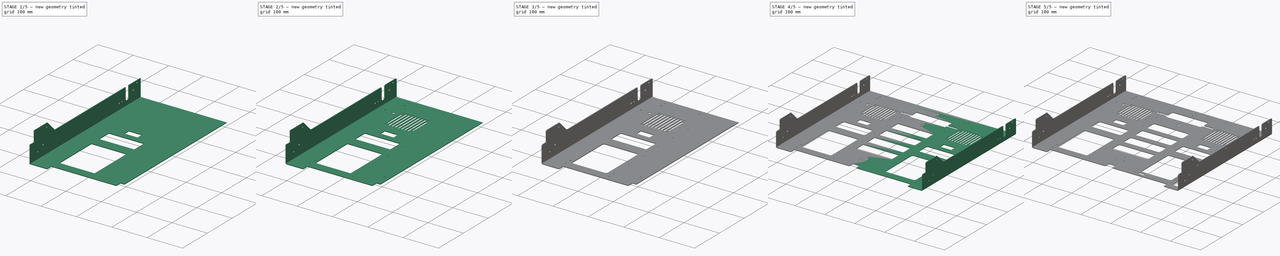
[diagram: build sequence overview — one tinted view per stage of 5, left to right]
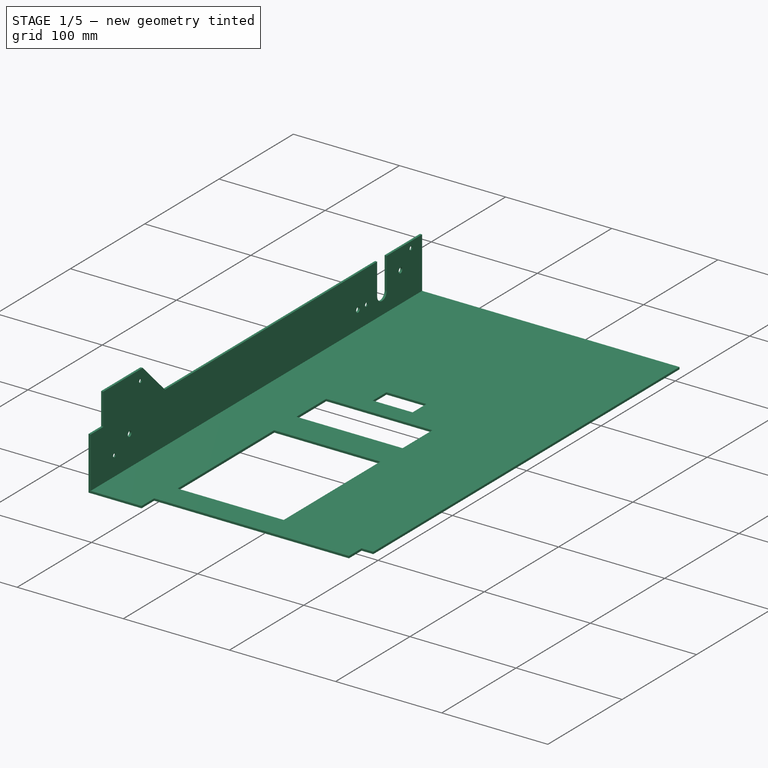
[diagram: stage 1 of 5 — iso view after this stage's code; geometry added in this stage tinted green]
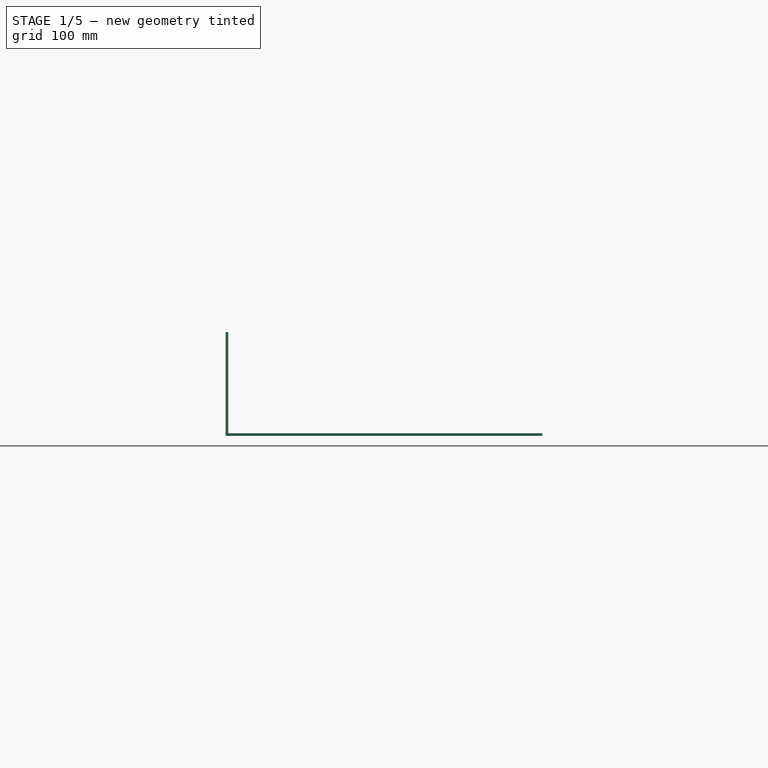
[diagram: stage 1 of 5 — front view after this stage's code; geometry added in this stage tinted green]
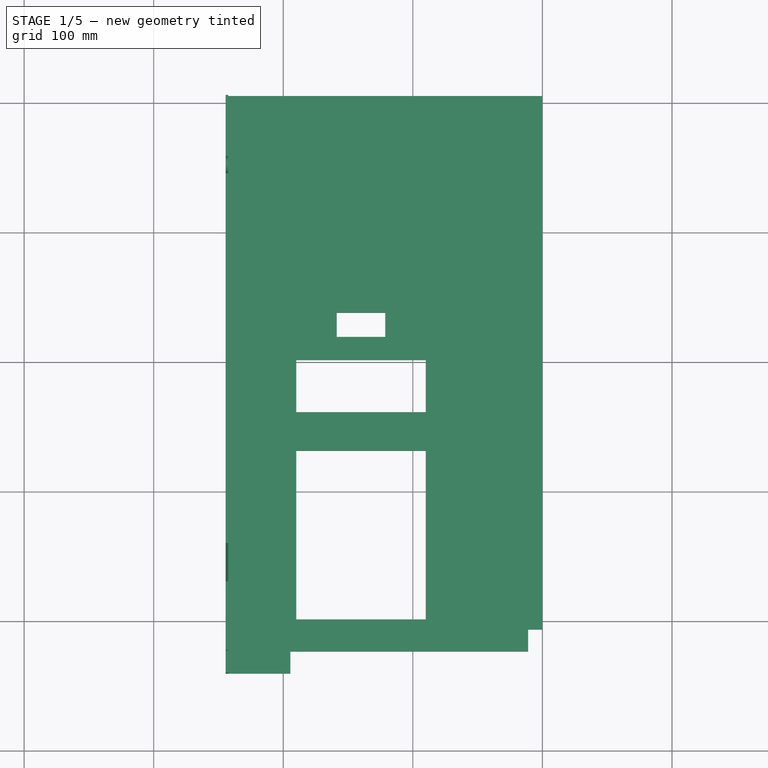
[diagram: stage 1 of 5 — top view after this stage's code; geometry added in this stage tinted green]
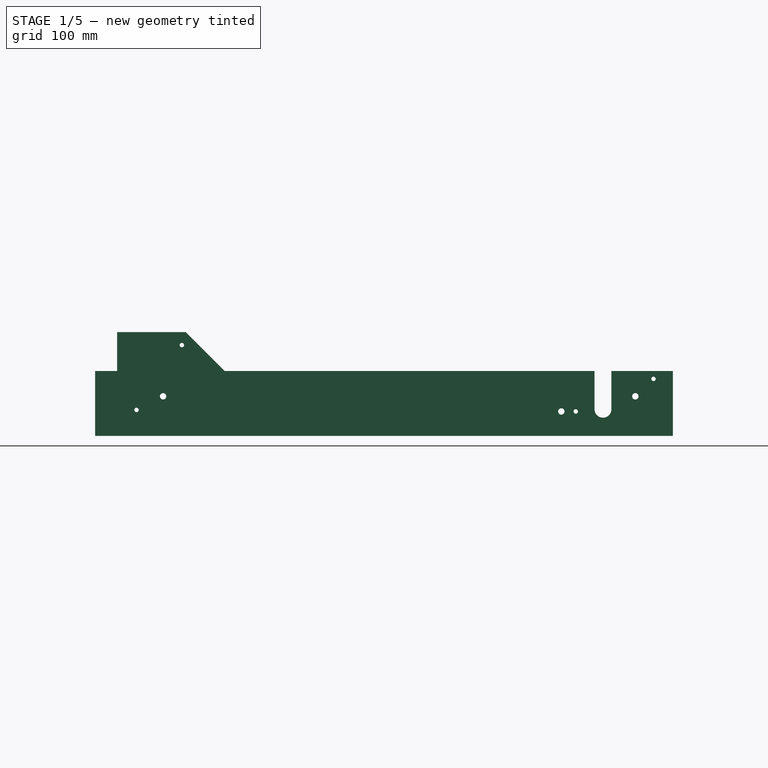
[diagram: stage 1 of 5 — right view after this stage's code; geometry added in this stage tinted green]
FCSTD DOCUMENT  (FreeCAD 0.14R3310 (Git))
Label: TAPA TRASERA INTERIOR
License: CC-BY 3.0
LicenseURL: http://creativecommons.org/licenses/by/3.0/
objects: PartDesign::Fillet×18, Sketcher::SketchObject×12, PartDesign::Pocket×9, PartDesign::Chamfer×5, PartDesign::Pad×3, Part::Mirroring×1, Part::MultiFuse×1
note: 61 computed .brp shape members not serialized (recipe doc carries the construction recipe); baked Part::Feature solids carry a one-line shape summary decoded from their .brp

FEATURE [Sketcher::SketchObject] Sketch
  sketch-geometry (4):
    g0: LineSegment StartX=0 StartY=305.568 StartZ=0 EndX=-242.5 EndY=305.568 EndZ=0
    g1: LineSegment StartX=-242.5 StartY=305.568 StartZ=0 EndX=-242.5 EndY=-140.432 EndZ=0
    g2: LineSegment StartX=-242.5 StartY=-140.432 StartZ=0 EndX=0 EndY=-140.432 EndZ=0
    g3: LineSegment StartX=0 StartY=-140.432 StartZ=0 EndX=0 EndY=305.568 EndZ=0
  constraints (11):
    c: Coincident(g0,g1)
    c: Coincident(g1,g2)
    c: Coincident(g2,g3)
    c: Coincident(g3,g0)
    c: Horizontal(g0)
    c: Horizontal(g2)
    c: Vertical(g1)
    c: Vertical(g3)
    c: PointOnObject(g0,g-2)
    c: DistanceX(g0) = -242.5
    c: DistanceY(g1) = -446
FEATURE [PartDesign::Pad] Pad
  Length = 2
  Length2 = 100
  Sketch = -> Sketch
  Type = 0
FEATURE [Sketcher::SketchObject] Sketch001
  ExternalGeometry = -> [Pad]
  Placement = pos=(-242.5,0,0) rot=(0.57735,-0.57735,-0.57735;2.0944rad)
  Support = -> Pad [Face2]
  sketch-geometry (4):
    g0: LineSegment StartX=-305.568 StartY=0 StartZ=0 EndX=140.432 EndY=0 EndZ=0
    g1: LineSegment StartX=140.432 StartY=0 StartZ=0 EndX=140.432 EndY=50 EndZ=0
    g2: LineSegment StartX=140.432 StartY=50 StartZ=0 EndX=-305.568 EndY=50 EndZ=0
    g3: LineSegment StartX=-305.568 StartY=50 StartZ=0 EndX=-305.568 EndY=0 EndZ=0
  constraints (11):
    c: Coincident(g0,g1)
    c: Coincident(g1,g2)
    c: Coincident(g2,g3)
    c: Coincident(g3,g0)
    c: Horizontal(g0)
    c: Horizontal(g2)
    c: Vertical(g1)
    c: Vertical(g3)
    c: Coincident(g0,g-3)
    c: Coincident(g-3,g0)
    c: DistanceY(g3) = -50
FEATURE [PartDesign::Pad] Pad001
  Length = 2
  Length2 = 100
  Sketch = -> Sketch001
  Type = 0
FEATURE [Sketcher::SketchObject] Sketch002
  ExternalGeometry = -> [Pad001]
  Placement = pos=(-244.5,0,0) rot=(0.57735,-0.57735,-0.57735;2.0944rad)
  Support = -> Pad001 [Face5]
  sketch-geometry (4):
    g0: LineSegment StartX=70.3822 StartY=80 StartZ=0 EndX=123.432 EndY=80 EndZ=0
    g1: LineSegment StartX=123.432 StartY=80 StartZ=0 EndX=123.432 EndY=50 EndZ=0
    g2: LineSegment StartX=123.432 StartY=50 StartZ=0 EndX=40.3822 EndY=50 EndZ=0
    g3: LineSegment StartX=40.3822 StartY=50 StartZ=0 EndX=70.3822 EndY=80 EndZ=0
  constraints (12):
    c: Coincident(g0,g1)
    c: Coincident(g1,g2)
    c: Horizontal(g0)
    c: Horizontal(g2)
    c: Vertical(g1)
    c: PointOnObject(g1,g-3)
    c: Distance(g-3,g1) = 17
    c: DistanceY(g-1,g0) = 80
    c: Distance(g2,g-3) = 100.05
    c: Coincident(g3,g2)
    c: Coincident(g3,g0)
    c: Angle(g2,g3) = 0.785398
FEATURE [PartDesign::Pad] Pad002
  Length = 2
  Length2 = 100
  Reversed = true
  Sketch = -> Sketch002
  Type = 0
FEATURE [Sketcher::SketchObject] Sketch003
  ExternalGeometry = -> [Pad002]
  Placement = pos=(-244.5,0,0) rot=(0.57735,-0.57735,-0.57735;2.0944rad)
  Support = -> Pad002 [Face12]
  sketch-geometry (4):
    g0: LineSegment StartX=-258.068 StartY=50 StartZ=0 EndX=-258.068 EndY=20.5 EndZ=0
    g1: LineSegment StartX=-245.068 StartY=50 StartZ=0 EndX=-245.068 EndY=20.5 EndZ=0
    g2: ArcOfCircle CenterX=-251.568 CenterY=20.5 CenterZ=0 NormalX=0 NormalY=0 NormalZ=1 Radius=6.5 StartAngle=3.14159 EndAngle=6.28319
    g3: LineSegment StartX=-258.068 StartY=50 StartZ=0 EndX=-245.068 EndY=50 EndZ=0
  constraints (13):
    c: Vertical(g0)
    c: Vertical(g1)
    c: Coincident(g0,g2)
    c: Coincident(g2,g1)
    c: Tangent(g1,g2)
    c: Tangent(g2,g0)
    c: Radius(g2) = 6.5
    c: Distance(g2,g-3) = 29.5
    c: Distance(g-3,g0) = 47.5
    c: Coincident(g3,g0)
    c: Coincident(g3,g1)
    c: Horizontal(g3)
    c: PointOnObject(g1,g-3)
FEATURE [PartDesign::Pocket] Pocket
  Length = 5
  Sketch = -> Sketch003
  Type = 1
FEATURE [Sketcher::SketchObject] Sketch004
  ExternalGeometry = -> [Pocket]
  Placement = pos=(-244.5,0,0) rot=(0.57735,-0.57735,-0.57735;2.0944rad)
  Support = -> Pocket [Face8]
  sketch-geometry (7):
    g0: Circle CenterX=87.9322 CenterY=30.5 CenterZ=0 NormalX=0 NormalY=0 NormalZ=1 Radius=2.46
    g1: Circle CenterX=108.432 CenterY=20 CenterZ=0 NormalX=0 NormalY=0 NormalZ=1 Radius=1.7
    g2: Circle CenterX=73.4322 CenterY=70 CenterZ=0 NormalX=0 NormalY=0 NormalZ=1 Radius=1.7
    g3: Circle CenterX=-290.568 CenterY=43.9587 CenterZ=0 NormalX=0 NormalY=0 NormalZ=1 Radius=1.7
    g4: Circle CenterX=-276.568 CenterY=30.5 CenterZ=0 NormalX=0 NormalY=0 NormalZ=1 Radius=2.46
    g5: Circle CenterX=-219.418 CenterY=18.8 CenterZ=0 NormalX=0 NormalY=0 NormalZ=1 Radius=2.46
    g6: Circle CenterX=-230.568 CenterY=18.8 CenterZ=0 NormalX=0 NormalY=0 NormalZ=1 Radius=1.7
  constraints (23):
    c: Distance(g0,g-3) = 52.5
    c: DistanceY(g-1,g0) = 30.5
    c: Radius(g1) = 1.7
    c: Radius(g0) = 2.46
    c: Distance(g1,g-3) = 32
    c: DistanceY(g-1,g1) = 20
    c: Equal(g2,g1)
    c: Distance(g2,g-3) = 67
    c: DistanceY(g-1,g2) = 70
    c: Equal(g1,g3)
    c: Distance(g3,g-4) = 6.2
    c: Distance(g3,g-5) = 15
    c: Equal(g0,g4)
    c: Distance(g4,g-4) = 19.5
    c: Distance(g4,g-5) = 29
    c: Equal(g5,g4)
    c: DistanceY(g-1,g5) = 18.8
    c: Distance(g5,g-5) = 86.15
    c: DistanceY(g-1,g6) = 18.8
    c: Distance(g6,g-5) = 75
    c: Equal(g6,g3)
    c: Distance(g3,g-6) = 6.04134
    c: Distance(g4,g-6) = 19.5
FEATURE [PartDesign::Pocket] Pocket001
  Length = 5
  Sketch = -> Sketch004
  Type = 1
FEATURE [PartDesign::Chamfer] Chamfer
  Base = -> Pocket001 [Edge48,Edge47,Edge49,Edge45]
  Size = 1.45
FEATURE [Sketcher::SketchObject] Sketch005
  ExternalGeometry = -> [Chamfer]
  Placement = pos=(0,0,2) rot=(0,0,1;0rad)
  Support = -> Chamfer [Face24]
  sketch-geometry (18):
    g0: LineSegment StartX=-194.5 StartY=-123.432 StartZ=0 EndX=-11 EndY=-123.432 EndZ=0
    g1: LineSegment StartX=0 StartY=-140.432 StartZ=0 EndX=-194.5 EndY=-140.432 EndZ=0
    g2: LineSegment StartX=-194.5 StartY=-140.432 StartZ=0 EndX=-194.5 EndY=-123.432 EndZ=0
    g3: LineSegment StartX=-11 StartY=-123.432 StartZ=0 EndX=-11 EndY=-106.432 EndZ=0
    g4: LineSegment StartX=-11 StartY=-106.432 StartZ=0 EndX=0 EndY=-106.432 EndZ=0
    g5: LineSegment StartX=0 StartY=-106.432 StartZ=0 EndX=0 EndY=-140.432 EndZ=0
    g6: LineSegment StartX=-190 StartY=31.5678 StartZ=0 EndX=-90 EndY=31.5678 EndZ=0
    g7: LineSegment StartX=-90 StartY=31.5678 StartZ=0 EndX=-90 EndY=-98.4322 EndZ=0
    g8: LineSegment StartX=-90 StartY=-98.4322 StartZ=0 EndX=-190 EndY=-98.4322 EndZ=0
    g9: LineSegment StartX=-190 StartY=-98.4322 StartZ=0 EndX=-190 EndY=31.5678 EndZ=0
    g10: LineSegment StartX=-190 StartY=101.568 StartZ=0 EndX=-90 EndY=101.568 EndZ=0
    g11: LineSegment StartX=-90 StartY=101.568 StartZ=0 EndX=-90 EndY=61.5678 EndZ=0
    g12: LineSegment StartX=-90 StartY=61.5678 StartZ=0 EndX=-190 EndY=61.5678 EndZ=0
    g13: LineSegment StartX=-190 StartY=61.5678 StartZ=0 EndX=-190 EndY=101.568 EndZ=0
    g14: LineSegment StartX=-158.75 StartY=138.068 StartZ=0 EndX=-121.25 EndY=138.068 EndZ=0
    g15: LineSegment StartX=-121.25 StartY=138.068 StartZ=0 EndX=-121.25 EndY=119.568 EndZ=0
    g16: LineSegment StartX=-121.25 StartY=119.568 StartZ=0 EndX=-158.75 EndY=119.568 EndZ=0
    g17: LineSegment StartX=-158.75 StartY=119.568 StartZ=0 EndX=-158.75 EndY=138.068 EndZ=0
  constraints (55):
    c: Coincident(g1,g2)
    c: Coincident(g2,g0)
    c: Horizontal(g0)
    c: Horizontal(g1)
    c: Vertical(g2)
    c: PointOnObject(g1,g-3)
    c: Distance(g0,g-4) = 50
    c: Coincident(g3,g4)
    c: Horizontal(g4)
    c: Vertical(g3)
    c: PointOnObject(g3,g0)
    c: PointOnObject(g0,g3)
    c: Coincident(g5,g4)
    c: Coincident(g5,g1)
    c: Vertical(g5)
    c: PointOnObject(g4,g-2)
    c: DistanceY(g3) = 17
    c: DistanceY(g2) = 17
    c: DistanceX(g4) = 11
    c: Coincident(g6,g7)
    c: Coincident(g7,g8)
    c: Coincident(g8,g9)
    c: Coincident(g9,g6)
    c: Horizontal(g6)
    c: Horizontal(g8)
    c: Vertical(g7)
    c: Vertical(g9)
    c: Distance(g8,g-4) = 54.5
    c: Distance(g8,g0) = 25
    c: DistanceY(g7) = -130
    c: DistanceX(g6) = 100
    c: Coincident(g10,g11)
    c: Coincident(g11,g12)
    c: Coincident(g12,g13)
    c: Coincident(g13,g10)
    c: Horizontal(g10)
    c: Horizontal(g12)
    c: Vertical(g11)
    c: Vertical(g13)
    c: Distance(g11,g6) = 30
    c: DistanceY(g11) = -40
    c: DistanceX(g10) = 100
    c: Distance(g12,g-4) = 54.5
    c: Coincident(g14,g15)
    c: Coincident(g15,g16)
    c: Coincident(g16,g17)
    c: Coincident(g17,g14)
    c: Horizontal(g14)
    c: Horizontal(g16)
    c: Vertical(g15)
    c: Vertical(g17)
    c: Distance(g16,g13) = 31.25
    c: Distance(g16,g10) = 18
    c: Distance(g15) = 18.5
    c: DistanceX(g14) = 37.5
FEATURE [PartDesign::Pocket] Pocket002
  Length = 5
  Sketch = -> Sketch005
  Type = 0
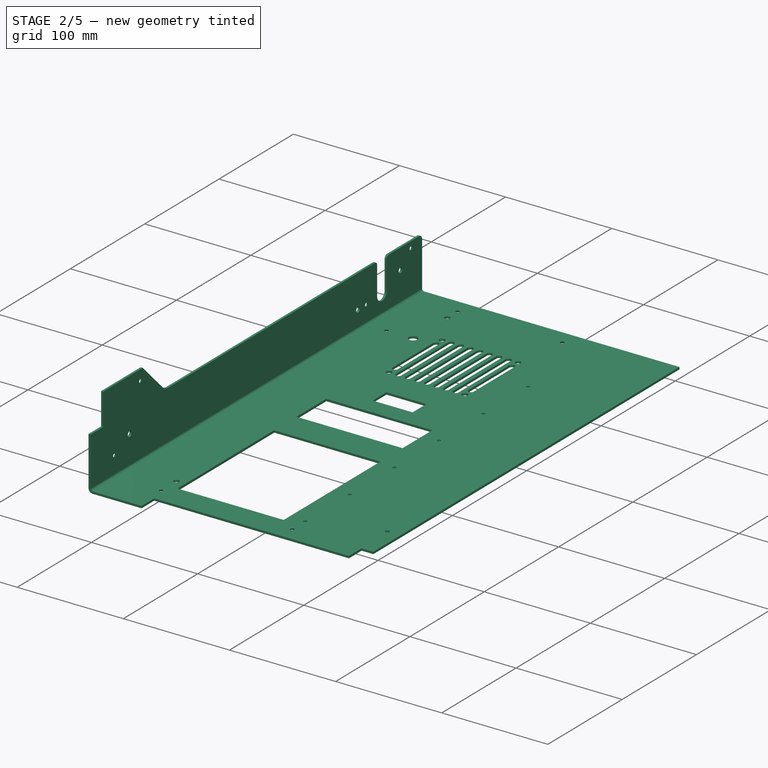
[diagram: stage 2 of 5 — iso view after this stage's code; geometry added in this stage tinted green]
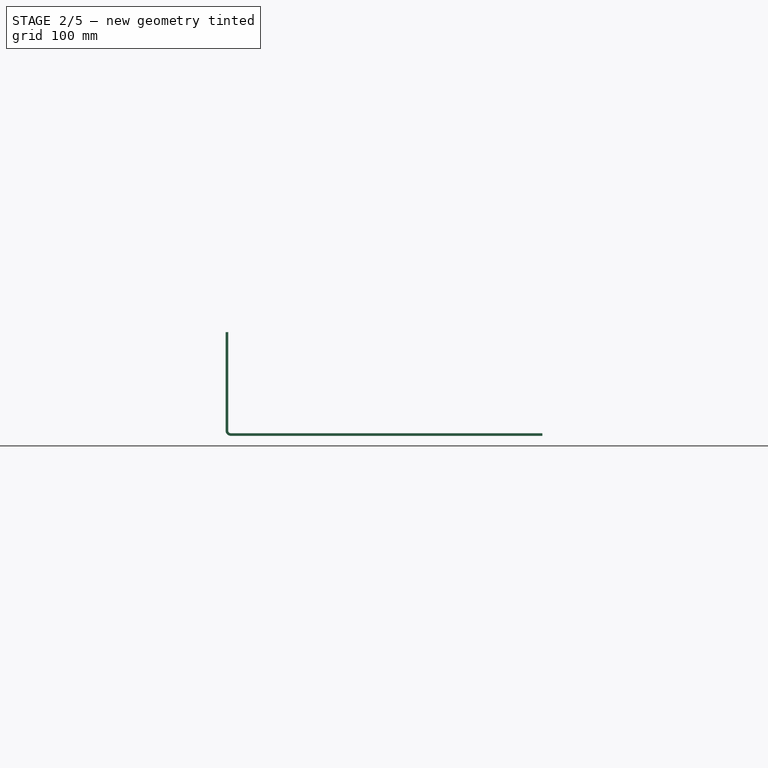
[diagram: stage 2 of 5 — front view after this stage's code; geometry added in this stage tinted green]
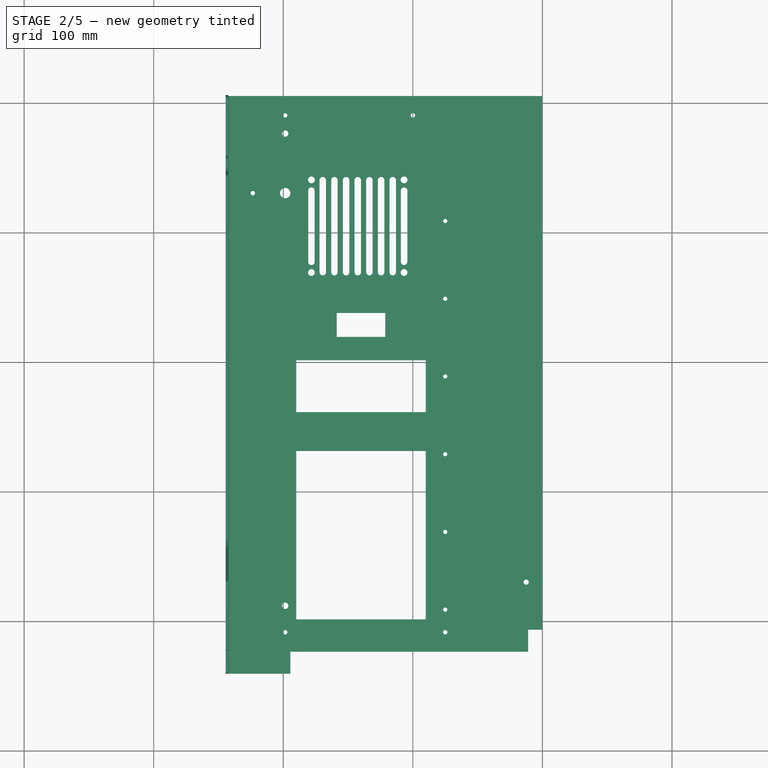
[diagram: stage 2 of 5 — top view after this stage's code; geometry added in this stage tinted green]
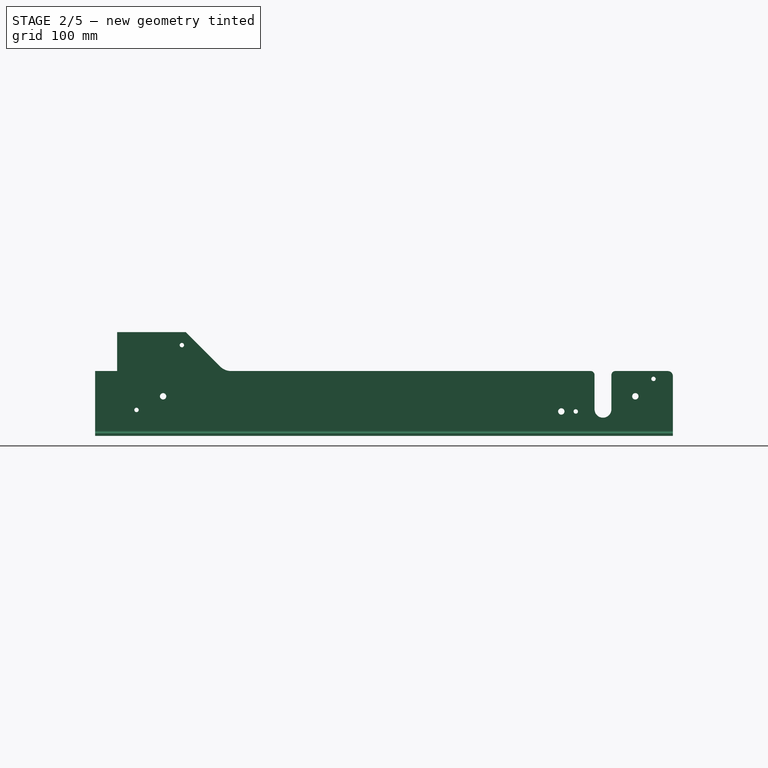
[diagram: stage 2 of 5 — right view after this stage's code; geometry added in this stage tinted green]
FEATURE [Sketcher::SketchObject] Sketch006
  ExternalGeometry = -> [Pocket002]
  Placement = pos=(0,0,2) rot=(0,0,1;0rad)
  Support = -> Pocket002 [Face40]
  sketch-geometry (59):
    g0: LineSegment [constr] StartX=-172 StartY=240.568 StartZ=0 EndX=-167 EndY=240.568 EndZ=0
    g1: LineSegment StartX=-167 StartY=240.568 StartZ=0 EndX=-167 EndY=169.568 EndZ=0
    g2: LineSegment [constr] StartX=-167 StartY=169.568 StartZ=0 EndX=-172 EndY=169.568 EndZ=0
    g3: LineSegment StartX=-172 StartY=169.568 StartZ=0 EndX=-172 EndY=240.568 EndZ=0
    g4: LineSegment [constr] StartX=0 StartY=205.068 StartZ=0 EndX=-280 EndY=205.068 EndZ=0
    g5: ArcOfCircle CenterX=-169.5 CenterY=169.568 CenterZ=0 NormalX=0 NormalY=0 NormalZ=1 Radius=2.5 StartAngle=3.14159 EndAngle=6.28319
    g6: ArcOfCircle CenterX=-169.5 CenterY=240.568 CenterZ=0 NormalX=0 NormalY=0 NormalZ=1 Radius=2.5 StartAngle=0 EndAngle=3.14159
    g7: LineSegment [constr] StartX=-163 StartY=240.568 StartZ=0 EndX=-158 EndY=240.568 EndZ=0
    g8: LineSegment StartX=-158 StartY=240.568 StartZ=0 EndX=-158 EndY=169.568 EndZ=0
    g9: LineSegment [constr] StartX=-158 StartY=169.568 StartZ=0 EndX=-163 EndY=169.568 EndZ=0
    g10: LineSegment StartX=-163 StartY=169.568 StartZ=0 EndX=-163 EndY=240.568 EndZ=0
    g11: ArcOfCircle CenterX=-160.5 CenterY=240.568 CenterZ=0 NormalX=0 NormalY=0 NormalZ=1 Radius=2.5 StartAngle=0 EndAngle=3.14159
    g12: ArcOfCircle CenterX=-160.5 CenterY=169.568 CenterZ=0 NormalX=0 NormalY=0 NormalZ=1 Radius=2.5 StartAngle=3.14159 EndAngle=6.28319
    g13: LineSegment [constr] StartX=-154 StartY=240.568 StartZ=0 EndX=-149 EndY=240.568 EndZ=0
    g14: LineSegment StartX=-149 StartY=240.568 StartZ=0 EndX=-149 EndY=169.568 EndZ=0
    g15: LineSegment [constr] StartX=-149 StartY=169.568 StartZ=0 EndX=-154 EndY=169.568 EndZ=0
    g16: LineSegment StartX=-154 StartY=169.568 StartZ=0 EndX=-154 EndY=240.568 EndZ=0
    g17: ArcOfCircle CenterX=-151.5 CenterY=240.568 CenterZ=0 NormalX=0 NormalY=0 NormalZ=1 Radius=2.5 StartAngle=0 EndAngle=3.14159
    g18: ArcOfCircle CenterX=-151.5 CenterY=169.568 CenterZ=0 NormalX=0 NormalY=0 NormalZ=1 Radius=2.5 StartAngle=3.14159 EndAngle=6.28319
    g19: LineSegment [constr] StartX=-145 StartY=240.568 StartZ=0 EndX=-140 EndY=240.568 EndZ=0
    g20: LineSegment StartX=-140 StartY=240.568 StartZ=0 EndX=-140 EndY=169.568 EndZ=0
    g21: LineSegment [constr] StartX=-140 StartY=169.568 StartZ=0 EndX=-145 EndY=169.568 EndZ=0
    g22: LineSegment StartX=-145 StartY=169.568 StartZ=0 EndX=-145 EndY=240.568 EndZ=0
    g23: LineSegment [constr] StartX=-136 StartY=240.568 StartZ=0 EndX=-131 EndY=240.568 EndZ=0
    g24: LineSegment StartX=-131 StartY=240.568 StartZ=0 EndX=-131 EndY=169.568 EndZ=0
    g25: LineSegment [constr] StartX=-131 StartY=169.568 StartZ=0 EndX=-136 EndY=169.568 EndZ=0
    g26: LineSegment StartX=-136 StartY=169.568 StartZ=0 EndX=-136 EndY=240.568 EndZ=0
    g27: LineSegment [constr] StartX=-127 StartY=240.568 StartZ=0 EndX=-122 EndY=240.568 EndZ=0
    g28: LineSegment StartX=-122 StartY=240.568 StartZ=0 EndX=-122 EndY=169.568 EndZ=0
    g29: LineSegment [constr] StartX=-122 StartY=169.568 StartZ=0 EndX=-127 EndY=169.568 EndZ=0
    g30: LineSegment StartX=-127 StartY=169.568 StartZ=0 EndX=-127 EndY=240.568 EndZ=0
    g31: LineSegment [constr] StartX=-118 StartY=240.568 StartZ=0 EndX=-113 EndY=240.568 EndZ=0
    g32: LineSegment StartX=-113 StartY=240.568 StartZ=0 EndX=-113 EndY=169.568 EndZ=0
    g33: LineSegment [constr] StartX=-113 StartY=169.568 StartZ=0 EndX=-118 EndY=169.568 EndZ=0
    g34: LineSegment StartX=-118 StartY=169.568 StartZ=0 EndX=-118 EndY=240.568 EndZ=0
    g35: ArcOfCircle CenterX=-142.5 CenterY=240.568 CenterZ=0 NormalX=0 NormalY=0 NormalZ=1 Radius=2.5 StartAngle=0 EndAngle=3.14159
    g36: ArcOfCircle CenterX=-142.5 CenterY=169.568 CenterZ=0 NormalX=0 NormalY=0 NormalZ=1 Radius=2.5 StartAngle=3.14159 EndAngle=6.28319
    g37: ArcOfCircle CenterX=-133.5 CenterY=240.568 CenterZ=0 NormalX=0 NormalY=0 NormalZ=1 Radius=2.5 StartAngle=0 EndAngle=3.14159
    g38: ArcOfCircle CenterX=-133.5 CenterY=169.568 CenterZ=0 NormalX=0 NormalY=0 NormalZ=1 Radius=2.5 StartAngle=3.14159 EndAngle=6.28319
    g39: ArcOfCircle CenterX=-124.5 CenterY=240.568 CenterZ=0 NormalX=0 NormalY=0 NormalZ=1 Radius=2.5 StartAngle=0 EndAngle=3.14159
    g40: ArcOfCircle CenterX=-124.5 CenterY=169.568 CenterZ=0 NormalX=0 NormalY=0 NormalZ=1 Radius=2.5 StartAngle=3.14159 EndAngle=6.28319
    g41: ArcOfCircle CenterX=-115.5 CenterY=240.568 CenterZ=0 NormalX=0 NormalY=0 NormalZ=1 Radius=2.5 StartAngle=0 EndAngle=3.14159
    g42: ArcOfCircle CenterX=-115.5 CenterY=169.568 CenterZ=0 NormalX=0 NormalY=0 NormalZ=1 Radius=2.5 StartAngle=3.14159 EndAngle=6.28319
    g43: LineSegment [constr] StartX=-180.75 StartY=232.568 StartZ=0 EndX=-175.75 EndY=232.568 EndZ=0
    g44: LineSegment StartX=-175.75 StartY=232.568 StartZ=0 EndX=-175.75 EndY=177.568 EndZ=0
    g45: LineSegment [constr] StartX=-175.75 StartY=177.568 StartZ=0 EndX=-180.75 EndY=177.568 EndZ=0
    g46: LineSegment StartX=-180.75 StartY=177.568 StartZ=0 EndX=-180.75 EndY=232.568 EndZ=0
    g47: ArcOfCircle CenterX=-178.25 CenterY=232.568 CenterZ=0 NormalX=0 NormalY=0 NormalZ=1 Radius=2.5 StartAngle=0 EndAngle=3.14159
    g48: ArcOfCircle CenterX=-178.25 CenterY=177.568 CenterZ=0 NormalX=0 NormalY=0 NormalZ=1 Radius=2.5 StartAngle=3.14159 EndAngle=6.28319
    g49: LineSegment [constr] StartX=-109.25 StartY=232.568 StartZ=0 EndX=-104.25 EndY=232.568 EndZ=0
    g50: LineSegment StartX=-104.25 StartY=232.568 StartZ=0 EndX=-104.25 EndY=177.568 EndZ=0
    g51: LineSegment [constr] StartX=-104.25 StartY=177.568 StartZ=0 EndX=-109.25 EndY=177.568 EndZ=0
    g52: LineSegment StartX=-109.25 StartY=177.568 StartZ=0 EndX=-109.25 EndY=232.568 EndZ=0
    g53: ArcOfCircle CenterX=-106.75 CenterY=232.568 CenterZ=0 NormalX=0 NormalY=0 NormalZ=1 Radius=2.5 StartAngle=0 EndAngle=3.14159
    g54: ArcOfCircle CenterX=-106.75 CenterY=177.568 CenterZ=0 NormalX=0 NormalY=0 NormalZ=1 Radius=2.5 StartAngle=3.14159 EndAngle=6.28319
    g55: Circle CenterX=-178.25 CenterY=240.818 CenterZ=0 NormalX=0 NormalY=0 NormalZ=1 Radius=2.625
    g56: Circle CenterX=-178.25 CenterY=169.318 CenterZ=0 NormalX=0 NormalY=0 NormalZ=1 Radius=2.625
    g57: Circle CenterX=-106.75 CenterY=240.818 CenterZ=0 NormalX=0 NormalY=0 NormalZ=1 Radius=2.625
    g58: Circle CenterX=-106.75 CenterY=169.318 CenterZ=0 NormalX=0 NormalY=0 NormalZ=1 Radius=2.625
  constraints (174):
    c: Coincident(g0,g1)
    c: Coincident(g1,g2)
    c: Coincident(g2,g3)
    c: Coincident(g3,g0)
    c: Horizontal(g0)
    c: Horizontal(g2)
    c: Vertical(g1)
    c: Vertical(g3)
    c: PointOnObject(g4,g-2)
    c: Distance(g-4,g4) = 67
    c: DistanceX(g4) = -280
    c: Symmetric(g1,g0,g4)
    c: DistanceY(g1) = -71
    c: Coincident(g5,g2)
    c: Coincident(g5,g1)
    c: PointOnObject(g6,g0)
    c: Coincident(g6,g0)
    c: Coincident(g6,g0)
    c: Radius(g6) = 2.5
    c: PointOnObject(g5,g2)
    c: Distance(g-4,g1) = 8.25
    c: Coincident(g7,g8)
    c: Coincident(g8,g9)
    c: Coincident(g9,g10)
    c: Coincident(g10,g7)
    c: Horizontal(g7)
    c: Horizontal(g9)
    c: Vertical(g8)
    c: Distance(g7,g1) = 4
    c: PointOnObject(g11,g7)
    c: Coincident(g11,g7)
    c: Coincident(g11,g7)
    c: Equal(g1,g10)
    c: Symmetric(g7,g9,g4)
    c: PointOnObject(g12,g9)
    c: Coincident(g12,g9)
    c: Coincident(g12,g8)
    c: Equal(g11,g6)
    c: Coincident(g13,g14)
    c: Coincident(g14,g15)
    c: Coincident(g15,g16)
    c: Coincident(g16,g13)
    c: Horizontal(g13)
    c: Horizontal(g15)
    c: Vertical(g14)
    c: Vertical(g16)
    c: Symmetric(g13,g15,g4)
    c: Equal(g16,g8)
    c: PointOnObject(g17,g13)
    c: Coincident(g17,g13)
    c: Coincident(g17,g13)
    c: PointOnObject(g18,g15)
    c: Coincident(g18,g14)
    c: Coincident(g18,g15)
    c: Distance(g13,g8) = 4
    c: Distance(g13,g16) = 5
    c: Coincident(g19,g20)
    c: Coincident(g20,g21)
    c: Coincident(g21,g22)
    c: Coincident(g22,g19)
    c: Horizontal(g19)
    c: Horizontal(g21)
    c: Vertical(g20)
    c: Vertical(g22)
    c: Coincident(g23,g24)
    c: Coincident(g24,g25)
    c: Coincident(g25,g26)
    c: Coincident(g26,g23)
    c: Horizontal(g23)
    c: Horizontal(g25)
    c: Vertical(g24)
    c: Vertical(g26)
    c: Coincident(g27,g28)
    c: Coincident(g28,g29)
    c: Coincident(g29,g30)
    c: Coincident(g30,g27)
    c: Horizontal(g27)
    c: Horizontal(g29)
    c: Vertical(g28)
    c: Vertical(g30)
    c: Coincident(g31,g32)
    c: Coincident(g32,g33)
    c: Coincident(g33,g34)
    c: Coincident(g34,g31)
    c: Horizontal(g31)
    c: Horizontal(g33)
    c: Vertical(g32)
    c: Vertical(g34)
    c: PointOnObject(g35,g19)
    c: Coincident(g35,g19)
    c: Coincident(g35,g19)
    c: PointOnObject(g36,g21)
    c: Coincident(g36,g21)
    c: Coincident(g36,g20)
    c: PointOnObject(g37,g23)
    c: Coincident(g37,g23)
    c: Coincident(g37,g23)
    c: PointOnObject(g38,g25)
    c: Coincident(g38,g25)
    c: Coincident(g38,g24)
    c: PointOnObject(g39,g27)
    c: Coincident(g39,g27)
    c: Coincident(g39,g27)
    c: PointOnObject(g40,g29)
    c: Coincident(g40,g29)
    c: PointOnObject(g41,g31)
    c: Coincident(g41,g31)
    c: Coincident(g41,g31)
    c: PointOnObject(g42,g33)
    c: Coincident(g42,g33)
    c: Coincident(g42,g32)
    c: Symmetric(g19,g21,g4)
    c: Symmetric(g23,g25,g4)
    c: Symmetric(g27,g29,g4)
    c: Symmetric(g31,g33,g4)
    c: Equal(g34,g30)
    c: Equal(g30,g26)
    c: Equal(g26,g22)
    c: Equal(g22,g14)
    c: Distance(g19,g14) = 4
    c: Distance(g23,g20) = 4
    c: Distance(g27,g24) = 4
    c: Coincident(g40,g28)
    c: Distance(g31,g28) = 4
    c: Distance(g19,g22) = 5
    c: Distance(g23,g26) = 5
    c: Distance(g27,g30) = 5
    c: Distance(g31,g34) = 5
    c: Coincident(g43,g44)
    c: Coincident(g44,g45)
    c: Coincident(g45,g46)
    c: Coincident(g46,g43)
    c: Horizontal(g43)
    c: Horizontal(g45)
    c: Vertical(g44)
    c: Vertical(g46)
    c: Distance(g43,g3) = 3.75
    c: PointOnObject(g47,g43)
    c: Coincident(g47,g43)
    c: Coincident(g47,g43)
    c: PointOnObject(g48,g45)
    c: Coincident(g48,g45)
    c: Coincident(g48,g44)
    c: Distance(g43,g46) = 5
    c: Symmetric(g45,g43,g4)
    c: Distance(g46) = 55
    c: Coincident(g49,g50)
    c: Coincident(g50,g51)
    c: Coincident(g51,g52)
    c: Coincident(g52,g49)
    c: Horizontal(g49)
    c: Horizontal(g51)
    c: Vertical(g50)
    c: Vertical(g52)
    c: Symmetric(g51,g49,g4)
    c: Equal(g52,g44)
    c: PointOnObject(g53,g49)
    c: Coincident(g53,g49)
    c: Coincident(g53,g49)
    c: PointOnObject(g54,g51)
    c: Coincident(g54,g51)
    c: Coincident(g54,g50)
    c: Distance(g51,g32) = 3.75
    c: Distance(g50,g52) = 5
    c: Equal(g55,g56)
    c: Symmetric(g55,g56,g4)
    c: Distance(g55,g3) = 6.25
    c: Radius(g55) = 2.625
    c: Distance(g55,g56) = 71.5
    c: Distance(g57,g32) = 6.25
    c: Equal(g57,g55)
    c: Symmetric(g58,g57,g4)
    c: Equal(g58,g56)
    c: Distance(g58,g57) = 71.5
FEATURE [PartDesign::Pocket] Pocket003
  Length = 5
  Sketch = -> Sketch006
  Type = 1
FEATURE [Sketcher::SketchObject] Sketch007
  ExternalGeometry = -> [Pocket003]
  Placement = pos=(0,0,2) rot=(0,0,1;0rad)
  Support = -> Pocket003 [Face80]
  sketch-geometry (16):
    g0: Circle CenterX=-198.5 CenterY=290.568 CenterZ=0 NormalX=0 NormalY=0 NormalZ=1 Radius=1.7
    g1: Circle CenterX=-198.5 CenterY=276.568 CenterZ=0 NormalX=0 NormalY=0 NormalZ=1 Radius=2.46
    g2: Circle CenterX=-198.5 CenterY=230.568 CenterZ=0 NormalX=0 NormalY=0 NormalZ=1 Radius=4
    g3: Circle CenterX=-223.5 CenterY=230.568 CenterZ=0 NormalX=0 NormalY=0 NormalZ=1 Radius=1.7
    g4: Circle CenterX=-198.5 CenterY=-87.9322 CenterZ=0 NormalX=0 NormalY=0 NormalZ=1 Radius=2.46
    g5: Circle CenterX=-198.5 CenterY=-108.432 CenterZ=0 NormalX=0 NormalY=0 NormalZ=1 Radius=1.7
    g6: LineSegment [constr] StartX=-75 StartY=350 StartZ=0 EndX=-75 EndY=-350 EndZ=0
    g7: Circle CenterX=-75 CenterY=-108.432 CenterZ=0 NormalX=0 NormalY=0 NormalZ=1 Radius=1.7
    g8: Circle CenterX=-75 CenterY=-90.9322 CenterZ=0 NormalX=0 NormalY=0 NormalZ=1 Radius=1.62
    g9: Circle CenterX=-75 CenterY=-30.9322 CenterZ=0 NormalX=0 NormalY=0 NormalZ=1 Radius=1.62
    g10: Circle CenterX=-75 CenterY=29.0678 CenterZ=0 NormalX=0 NormalY=0 NormalZ=1 Radius=1.62
    g11: Circle CenterX=-75 CenterY=89.0678 CenterZ=0 NormalX=0 NormalY=0 NormalZ=1 Radius=1.62
    g12: Circle CenterX=-75 CenterY=149.068 CenterZ=0 NormalX=0 NormalY=0 NormalZ=1 Radius=1.62
    g13: Circle CenterX=-75 CenterY=209.068 CenterZ=0 NormalX=0 NormalY=0 NormalZ=1 Radius=1.62
    g14: Circle CenterX=-100 CenterY=290.568 CenterZ=0 NormalX=0 NormalY=0 NormalZ=1 Radius=1.7
    g15: Circle CenterX=-12.5 CenterY=-69.6822 CenterZ=0 NormalX=0 NormalY=0 NormalZ=1 Radius=2
  constraints (49):
    c: Distance(g0,g-3) = 46
    c: Distance(g1,g-3) = 46
    c: Radius(g0) = 1.7
    c: Radius(g1) = 2.46
    c: Distance(g1,g-4) = 29
    c: Distance(g0,g-4) = 15
    c: Distance(g3,g-3) = 21
    c: Distance(g2,g-3) = 46
    c: Radius(g3) = 1.7
    c: Radius(g2) = 4
    c: Distance(g2,g-4) = 75
    c: Distance(g3,g-4) = 75
    c: Distance(g5,g-5) = 46
    c: Distance(g4,g-5) = 46
    c: Equal(g5,g0)
    c: Equal(g1,g4)
    c: Distance(g5,g-6) = 32
    c: Distance(g4,g-6) = 52.5
    c: Vertical(g6)
    c: DistanceX(g-2,g6) = -75
    c: DistanceY(g6) = -700
    c: Symmetric(g6,g6,g-1)
    c: PointOnObject(g7,g6)
    c: PointOnObject(g8,g6)
    c: Distance(g7,g-7) = 15
    c: Distance(g8,g7) = 17.5
    c: Radius(g8) = 1.62
    c: PointOnObject(g9,g6)
    c: PointOnObject(g10,g6)
    c: PointOnObject(g11,g6)
    c: PointOnObject(g12,g6)
    c: PointOnObject(g13,g6)
    c: Equal(g8,g9)
    c: Equal(g9,g10)
    c: Equal(g10,g11)
    c: Equal(g11,g12)
    c: Equal(g12,g13)
    c: Distance(g8,g9) = 60
    c: Distance(g10,g9) = 60
    c: Distance(g11,g10) = 60
    c: Distance(g12,g11) = 60
    c: Distance(g12,g13) = 60
    c: Equal(g14,g0)
    c: Distance(g14,g0) = 98.5
    c: Distance(g14,g-4) = 15
    c: Radius(g15) = 2
    c: DistanceX(g-2,g15) = -12.5
    c: Distance(g15,g-7) = 53.75
    c: Equal(g7,g5)
FEATURE [PartDesign::Pocket] Pocket004
  Length = 5
  Sketch = -> Sketch007
  Type = 1
FEATURE [PartDesign::Chamfer] Chamfer001
  Base = -> Pocket004 [Edge95,Edge85,Edge91,Edge87,Edge86]
  Size = 1.45
FEATURE [PartDesign::Fillet] Fillet
  Base = -> Chamfer001 [Edge249]
  Radius = 2
FEATURE [PartDesign::Fillet] Fillet001
  Base = -> Fillet [Edge104]
  Radius = 4
FEATURE [PartDesign::Fillet] Fillet002
  Base = -> Fillet001 [Edge3]
  Radius = 4
FEATURE [PartDesign::Fillet] Fillet003
  Base = -> Fillet002 [Edge206,Edge199]
  Radius = 3
FEATURE [PartDesign::Fillet] Fillet004
  Base = -> Fillet003 [Edge55]
  Radius = 12
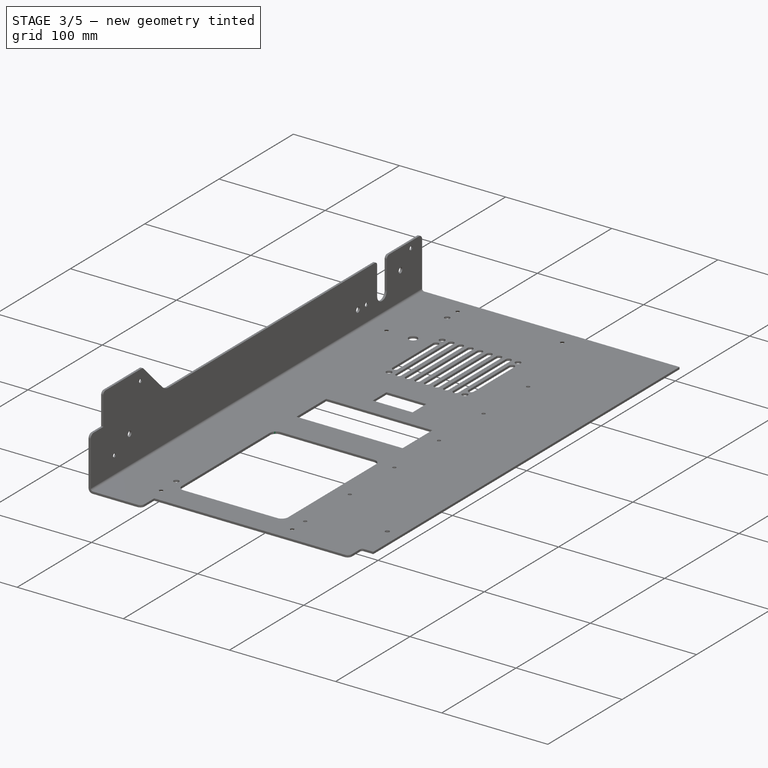
[diagram: stage 3 of 5 — iso view after this stage's code; geometry added in this stage tinted green]
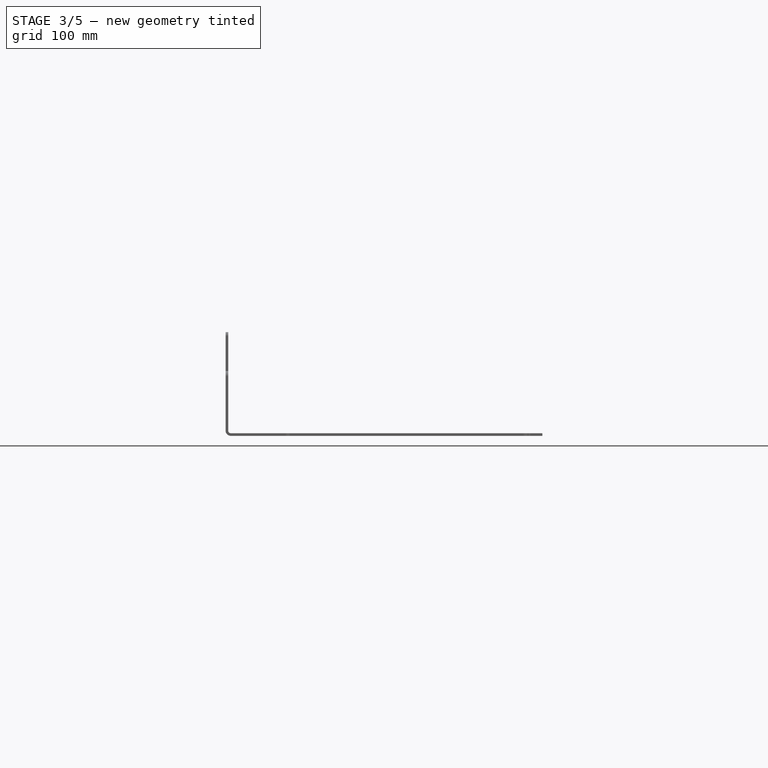
[diagram: stage 3 of 5 — front view after this stage's code; geometry added in this stage tinted green]
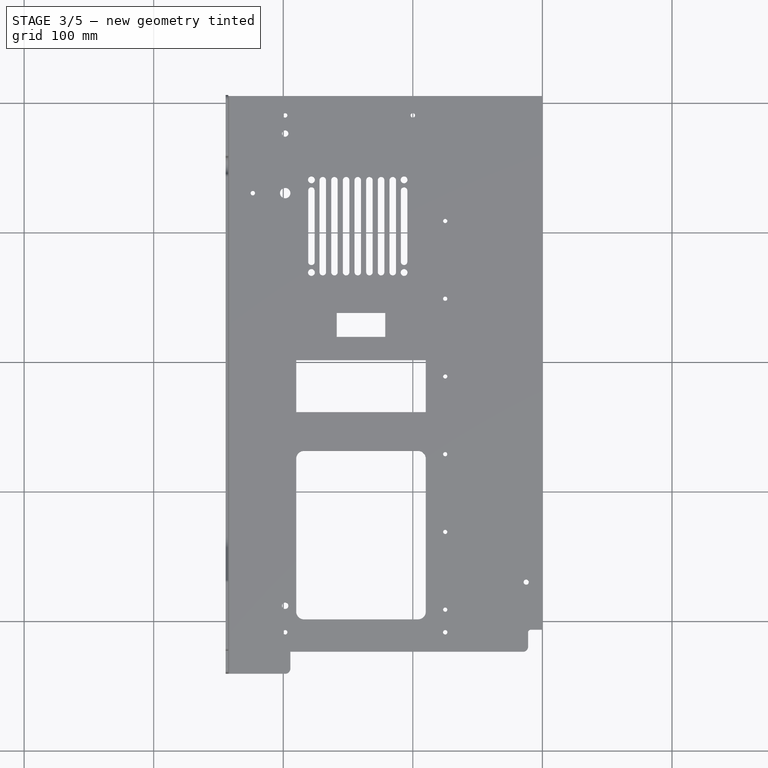
[diagram: stage 3 of 5 — top view after this stage's code; geometry added in this stage tinted green]
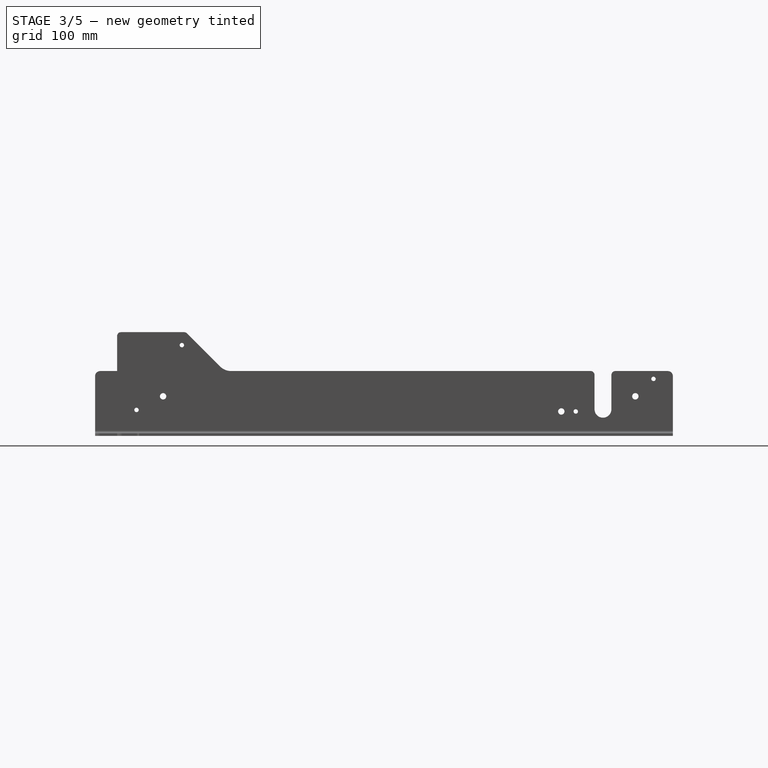
[diagram: stage 3 of 5 — right view after this stage's code; geometry added in this stage tinted green]
FEATURE [PartDesign::Fillet] Fillet005
  Base = -> Fillet004 [Edge31]
  Radius = 3
FEATURE [PartDesign::Fillet] Fillet006
  Base = -> Fillet005 [Edge32]
  Radius = 3
FEATURE [PartDesign::Fillet] Fillet007
  Base = -> Fillet006 [Edge38]
  Radius = 4
FEATURE [PartDesign::Fillet] Fillet008
  Base = -> Fillet007 [Edge38]
  Radius = 4
FEATURE [PartDesign::Fillet] Fillet009
  Base = -> Fillet008 [Edge216]
  Radius = 4
FEATURE [PartDesign::Fillet] Fillet010
  Base = -> Fillet009 [Edge86]
  Radius = 2
FEATURE [PartDesign::Fillet] Fillet011
  Base = -> Fillet010 [Edge128,Edge131,Edge133,Edge129]
  Radius = 6
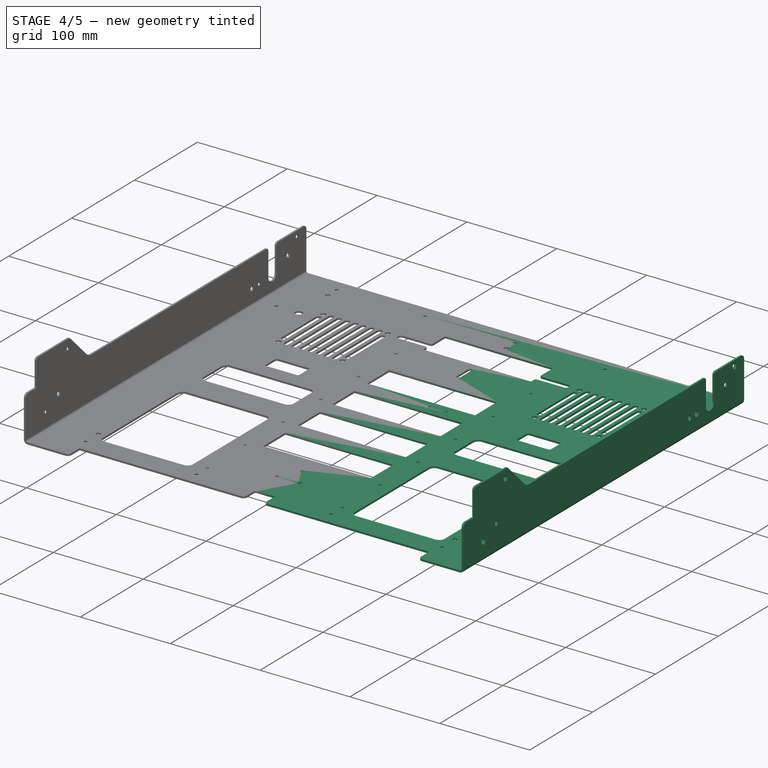
[diagram: stage 4 of 5 — iso view after this stage's code; geometry added in this stage tinted green]
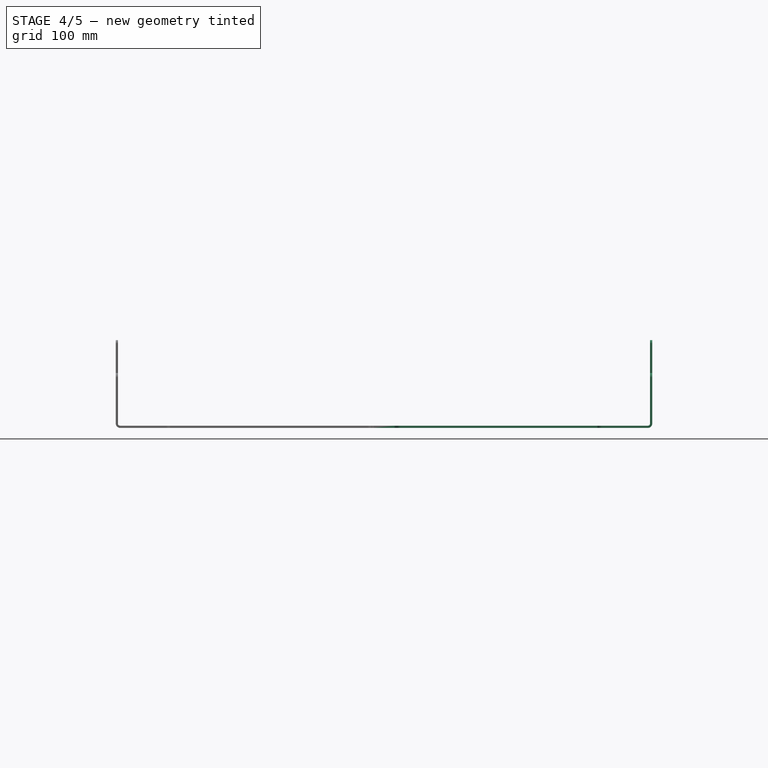
[diagram: stage 4 of 5 — front view after this stage's code; geometry added in this stage tinted green]
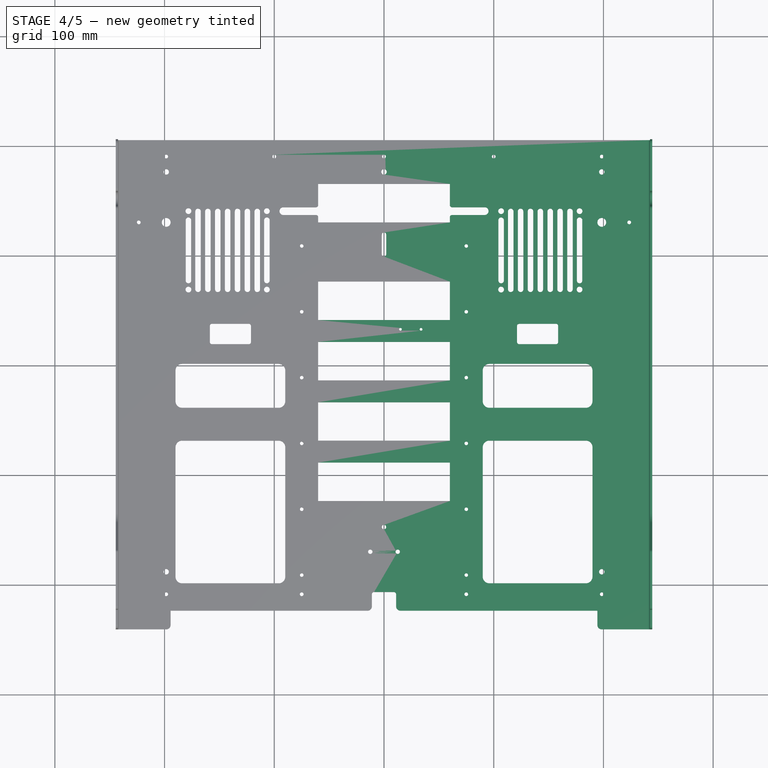
[diagram: stage 4 of 5 — top view after this stage's code; geometry added in this stage tinted green]
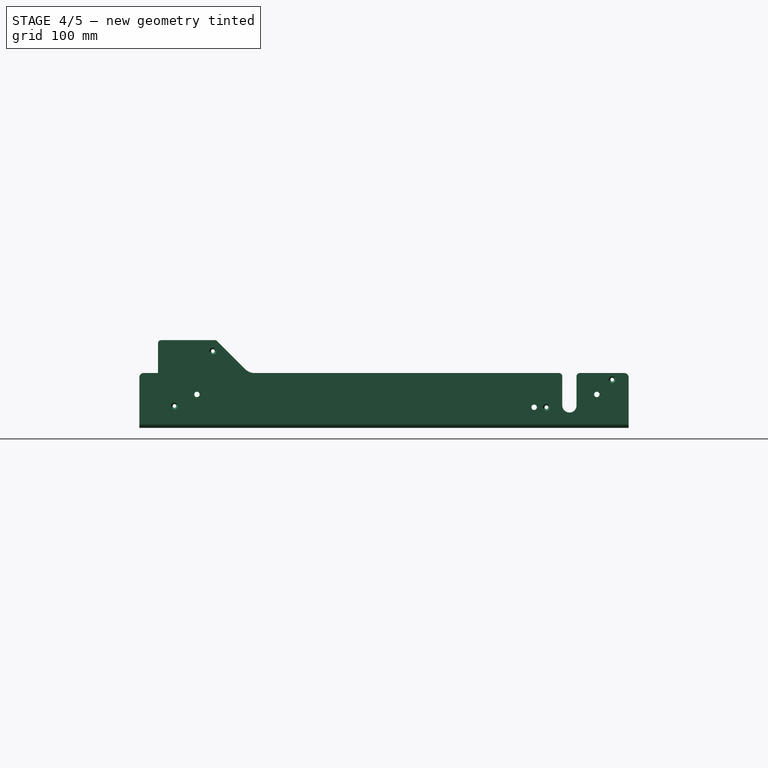
[diagram: stage 4 of 5 — right view after this stage's code; geometry added in this stage tinted green]
FEATURE [PartDesign::Fillet] Fillet012
  Base = -> Fillet011 [Edge135,Edge132,Edge133,Edge137]
  Radius = 2
FEATURE [PartDesign::Fillet] Fillet013
  Base = -> Fillet012 [Edge152,Edge153,Edge157,Edge155]
  Radius = 6
FEATURE [Part::Mirroring] Part__Mirroring  label="Fillet013 (Mirror #1)"
  Base = (0,0,0)
  Normal = (1,0,0)
  Source = -> Fillet013
FEATURE [Part::MultiFuse] Fusion
  Shapes = -> [Part__Mirroring,Fillet013]
FEATURE [Sketcher::SketchObject] Sketch008
  ExternalGeometry = -> [Fusion]
  Placement = pos=(0,0,0) rot=(1,0,0;3.14159rad)
  Support = -> Fusion [Face246]
  sketch-geometry (6):
    g0: Circle CenterX=0 CenterY=47.1822 CenterZ=0 NormalX=0 NormalY=0 NormalZ=1 Radius=2
    g1: LineSegment [constr] StartX=-12.5 StartY=69.6822 StartZ=0 EndX=0 EndY=69.6822 EndZ=0
    g2: LineSegment StartX=-60 StartY=23.4322 StartZ=0 EndX=60 EndY=23.4322 EndZ=0
    g3: LineSegment StartX=60 StartY=23.4322 StartZ=0 EndX=60 EndY=-11.5678 EndZ=0
    g4: LineSegment StartX=60 StartY=-11.5678 StartZ=0 EndX=-60 EndY=-11.5678 EndZ=0
    g5: LineSegment StartX=-60 StartY=-11.5678 StartZ=0 EndX=-60 EndY=23.4322 EndZ=0
  constraints (18):
    c: PointOnObject(g0,g-2)
    c: Equal(g-3,g0)
    c: Coincident(g1,g-3)
    c: Distance(g0,g1) = 22.5
    c: Horizontal(g1)
    c: PointOnObject(g1,g-2)
    c: Coincident(g2,g3)
    c: Coincident(g3,g4)
    c: Coincident(g4,g5)
    c: Coincident(g5,g2)
    c: Horizontal(g2)
    c: Horizontal(g4)
    c: Vertical(g3)
    c: Vertical(g5)
    c: Symmetric(g2,g2,g-2)
    c: DistanceX(g2) = 120
    c: DistanceY(g3) = -35
    c: Distance(g0,g2) = 23.75
FEATURE [PartDesign::Pocket] Pocket005
  Length = 5
  Sketch = -> Sketch008
  Type = 1
FEATURE [Sketcher::SketchObject] Sketch009
  ExternalGeometry = -> [Pocket005]
  Placement = pos=(0,0,0) rot=(1,0,0;3.14159rad)
  Support = -> Pocket005 [Face5]
  sketch-geometry (40):
    g0: LineSegment StartX=-60 StartY=-31.5678 StartZ=0 EndX=60 EndY=-31.5678 EndZ=0
    g1: LineSegment StartX=60 StartY=-31.5678 StartZ=0 EndX=60 EndY=-66.5678 EndZ=0
    g2: LineSegment StartX=60 StartY=-66.5678 StartZ=0 EndX=-60 EndY=-66.5678 EndZ=0
    g3: LineSegment StartX=-60 StartY=-66.5678 StartZ=0 EndX=-60 EndY=-31.5678 EndZ=0
    g4: LineSegment StartX=-60 StartY=-86.5678 StartZ=0 EndX=60 EndY=-86.5678 EndZ=0
    g5: LineSegment StartX=60 StartY=-86.5678 StartZ=0 EndX=60 EndY=-121.568 EndZ=0
    g6: LineSegment StartX=60 StartY=-121.568 StartZ=0 EndX=-60 EndY=-121.568 EndZ=0
    g7: LineSegment StartX=-60 StartY=-121.568 StartZ=0 EndX=-60 EndY=-86.5678 EndZ=0
    g8: LineSegment StartX=-60 StartY=-141.568 StartZ=0 EndX=60 EndY=-141.568 EndZ=0
    g9: LineSegment StartX=60 StartY=-141.568 StartZ=0 EndX=60 EndY=-176.568 EndZ=0
    g10: LineSegment StartX=60 StartY=-176.568 StartZ=0 EndX=-60 EndY=-176.568 EndZ=0
    g11: LineSegment StartX=-60 StartY=-176.568 StartZ=0 EndX=-60 EndY=-141.568 EndZ=0
    g12: LineSegment StartX=-60 StartY=-230.568 StartZ=0 EndX=60 EndY=-230.568 EndZ=0
    g13: LineSegment [constr] StartX=60 StartY=-230.568 StartZ=0 EndX=60 EndY=-265.568 EndZ=0
    g14: LineSegment StartX=60 StartY=-265.568 StartZ=0 EndX=-60 EndY=-265.568 EndZ=0
    g15: LineSegment [constr] StartX=-60 StartY=-265.568 StartZ=0 EndX=-60 EndY=-230.568 EndZ=0
    g16: Circle CenterX=15 CenterY=-133.068 CenterZ=0 NormalX=0 NormalY=0 NormalZ=1 Radius=1.23
    g17: Circle CenterX=33.75 CenterY=-133.068 CenterZ=0 NormalX=0 NormalY=0 NormalZ=1 Radius=1.23
    g18: Circle CenterX=0 CenterY=-276.568 CenterZ=0 NormalX=0 NormalY=0 NormalZ=1 Radius=2.46
    g19: Circle CenterX=0 CenterY=-290.568 CenterZ=0 NormalX=0 NormalY=0 NormalZ=1 Radius=1.7
    g20: LineSegment [constr] StartX=-2 StartY=-201.368 StartZ=0 EndX=2 EndY=-201.368 EndZ=0
    g21: LineSegment StartX=2 StartY=-201.368 StartZ=0 EndX=2 EndY=-219.368 EndZ=0
    g22: LineSegment [constr] StartX=2 StartY=-219.368 StartZ=0 EndX=-2 EndY=-219.368 EndZ=0
    g23: LineSegment StartX=-2 StartY=-219.368 StartZ=0 EndX=-2 EndY=-201.368 EndZ=0
    g24: ArcOfCircle CenterX=0 CenterY=-201.368 CenterZ=0 NormalX=0 NormalY=0 NormalZ=1 Radius=2 StartAngle=0 EndAngle=3.14159
    g25: ArcOfCircle CenterX=0 CenterY=-219.368 CenterZ=0 NormalX=0 NormalY=0 NormalZ=1 Radius=2 StartAngle=3.14159 EndAngle=6.28319
    g26: LineSegment [constr] StartX=-91.75 StartY=-237.318 StartZ=0 EndX=91.75 EndY=-237.318 EndZ=0
    g27: LineSegment [constr] StartX=91.75 StartY=-237.318 StartZ=0 EndX=91.75 EndY=-244.318 EndZ=0
    g28: LineSegment [constr] StartX=91.75 StartY=-244.318 StartZ=0 EndX=-91.75 EndY=-244.318 EndZ=0
    g29: LineSegment [constr] StartX=-91.75 StartY=-244.318 StartZ=0 EndX=-91.75 EndY=-237.318 EndZ=0
    g30: ArcOfCircle CenterX=-91.75 CenterY=-240.818 CenterZ=0 NormalX=0 NormalY=0 NormalZ=1 Radius=3.5 StartAngle=1.5708 EndAngle=4.71239
    g31: ArcOfCircle CenterX=91.75 CenterY=-240.818 CenterZ=0 NormalX=0 NormalY=0 NormalZ=1 Radius=3.5 StartAngle=4.71239 EndAngle=7.85398
    g32: LineSegment StartX=-60 StartY=-237.318 StartZ=0 EndX=-60 EndY=-230.568 EndZ=0
    g33: LineSegment StartX=-60 StartY=-237.318 StartZ=0 EndX=-91.75 EndY=-237.318 EndZ=0
    g34: LineSegment StartX=-91.75 StartY=-244.318 StartZ=0 EndX=-60 EndY=-244.318 EndZ=0
    g35: LineSegment StartX=-60 StartY=-244.318 StartZ=0 EndX=-60 EndY=-265.568 EndZ=0
    g36: LineSegment StartX=60 StartY=-230.568 StartZ=0 EndX=60 EndY=-237.318 EndZ=0
    g37: LineSegment StartX=60 StartY=-237.318 StartZ=0 EndX=91.75 EndY=-237.318 EndZ=0
    g38: LineSegment StartX=91.75 StartY=-244.318 StartZ=0 EndX=60 EndY=-244.318 EndZ=0
    g39: LineSegment StartX=60 StartY=-244.318 StartZ=0 EndX=60 EndY=-265.568 EndZ=0
  constraints (116):
    c: Coincident(g0,g1)
    c: Coincident(g1,g2)
    c: Coincident(g2,g3)
    c: Coincident(g3,g0)
    c: Horizontal(g0)
    c: Horizontal(g2)
    c: Vertical(g1)
    c: Vertical(g3)
    c: Symmetric(g0,g0,g-2)
    c: Equal(g0,g-3)
    c: DistanceY(g1) = -35
    c: Distance(g-3,g0) = 20
    c: Coincident(g4,g5)
    c: Coincident(g5,g6)
    c: Coincident(g6,g7)
    c: Coincident(g7,g4)
    c: Horizontal(g4)
    c: Horizontal(g6)
    c: Vertical(g5)
    c: Vertical(g7)
    c: Coincident(g8,g9)
    c: Coincident(g9,g10)
    c: Coincident(g10,g11)
    c: Coincident(g11,g8)
    c: Horizontal(g8)
    c: Horizontal(g10)
    c: Vertical(g9)
    c: Vertical(g11)
    c: Distance(g4,g2) = 20
    c: DistanceY(g5) = -35
    c: Equal(g4,g2)
    c: Symmetric(g4,g4,g-2)
    c: Distance(g8,g6) = 20
    c: Symmetric(g8,g8,g-2)
    c: Equal(g6,g8)
    c: DistanceY(g9) = -35
    c: Coincident(g12,g13)
    c: Coincident(g13,g14)
    c: Coincident(g14,g15)
    c: Coincident(g15,g12)
    c: Horizontal(g12)
    c: Horizontal(g14)
    c: Vertical(g13)
    c: Vertical(g15)
    c: Distance(g12,g10) = 54
    c: DistanceY(g13) = -35
    c: Symmetric(g12,g12,g-2)
    c: Equal(g12,g10)
    c: Radius(g17) = 1.23
    c: Equal(g17,g16)
    c: Distance(g17,g6) = 11.5
    c: Distance(g16,g6) = 11.5
    c: Distance(g17,g5) = 26.25
    c: Distance(g16,g17) = 18.75
    c: PointOnObject(g18,g-2)
    c: PointOnObject(g19,g-2)
    c: Distance(g18,g14) = 11
    c: Distance(g18,g19) = 14
    c: Radius(g18) = 2.46
    c: Radius(g19) = 1.7
    c: Coincident(g20,g21)
    c: Coincident(g21,g22)
    c: Coincident(g22,g23)
    c: Coincident(g23,g20)
    c: Horizontal(g20)
    c: Horizontal(g22)
    c: Vertical(g21)
    c: Vertical(g23)
    c: Symmetric(g20,g20,g-2)
    c: PointOnObject(g24,g20)
    c: Coincident(g24,g20)
    c: Coincident(g24,g20)
    c: PointOnObject(g25,g22)
    c: Coincident(g25,g21)
    c: Coincident(g25,g22)
    c: Distance(g25,g12) = 11.2
    c: Radius(g25) = 2
    c: DistanceY(g21) = -18
    c: Coincident(g26,g27)
    c: Coincident(g27,g28)
    c: Coincident(g28,g29)
    c: Coincident(g29,g26)
    c: Horizontal(g26)
    c: Horizontal(g28)
    c: Vertical(g27)
    c: Vertical(g29)
    c: PointOnObject(g30,g29)
    c: Coincident(g30,g26)
    c: Coincident(g30,g28)
    c: PointOnObject(g31,g27)
    c: Coincident(g31,g26)
    c: Coincident(g31,g27)
    c: DistanceX(g26) = 183.5
    c: Symmetric(g31,g30,g-2)
    c: Radius(g30) = 3.5
    c: Distance(g12,g26) = 6.75
    c: PointOnObject(g32,g15)
    c: Coincident(g32,g12)
    c: Coincident(g33,g32)
    c: Coincident(g33,g26)
    c: Horizontal(g33)
    c: Coincident(g34,g28)
    c: PointOnObject(g34,g15)
    c: Horizontal(g34)
    c: Coincident(g35,g34)
    c: Coincident(g35,g14)
    c: Coincident(g36,g12)
    c: PointOnObject(g36,g13)
    c: Coincident(g37,g36)
    c: Coincident(g37,g26)
    c: Horizontal(g37)
    c: Coincident(g38,g27)
    c: PointOnObject(g38,g13)
    c: Horizontal(g38)
    c: Coincident(g39,g38)
    c: Coincident(g39,g13)
FEATURE [PartDesign::Pocket] Pocket006
  Length = 5
  Sketch = -> Sketch009
  Type = 1
FEATURE [PartDesign::Chamfer] Chamfer002
  Base = -> Pocket006 [Edge423]
  Size = 1.45
FEATURE [PartDesign::Fillet] Fillet014
  Base = -> Chamfer002 [Edge608,Edge602,Edge613,Edge594]
  Radius = 2
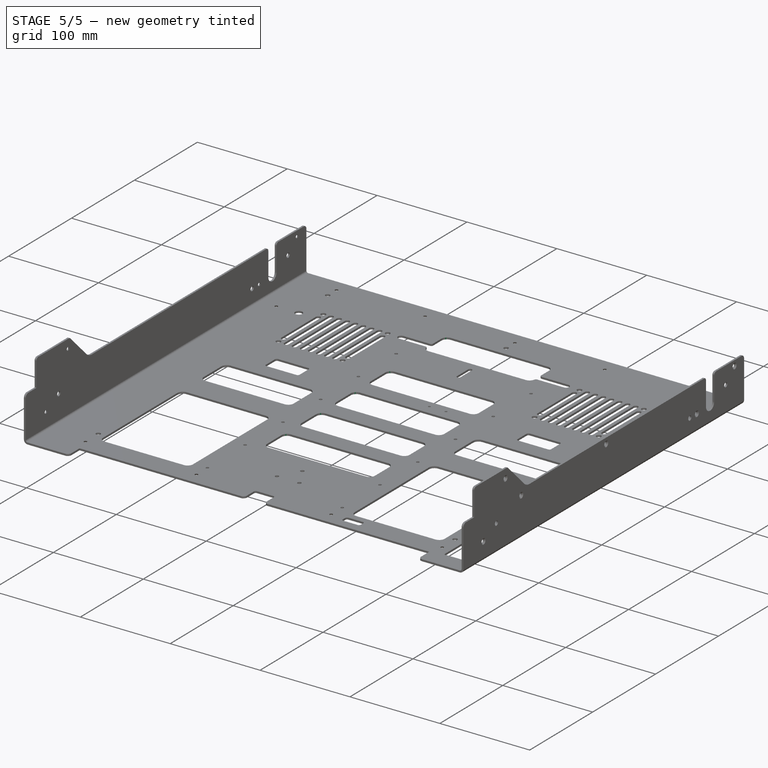
[diagram: stage 5 of 5 — iso view after this stage's code; geometry added in this stage tinted green]
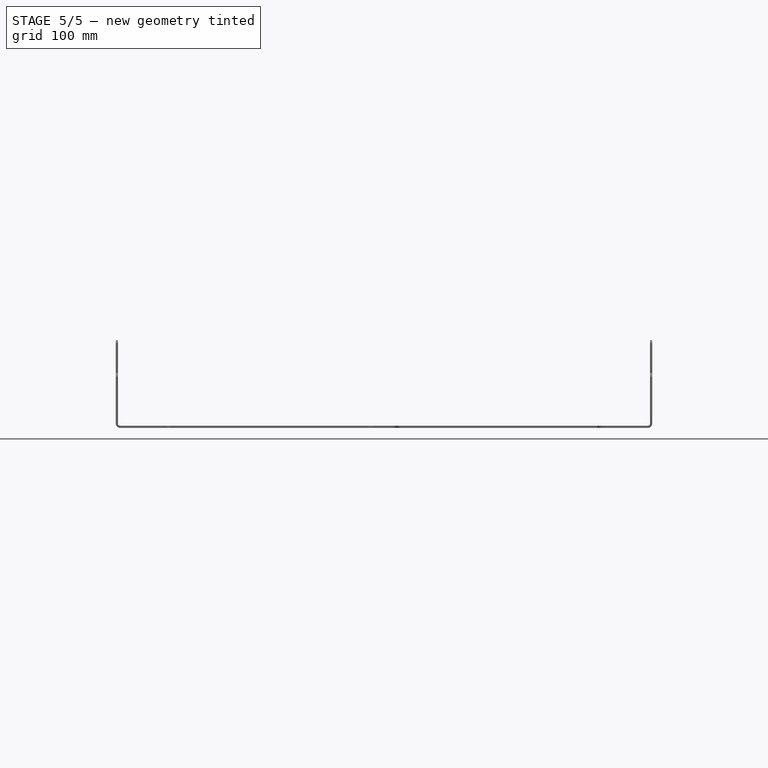
[diagram: stage 5 of 5 — front view after this stage's code; geometry added in this stage tinted green]
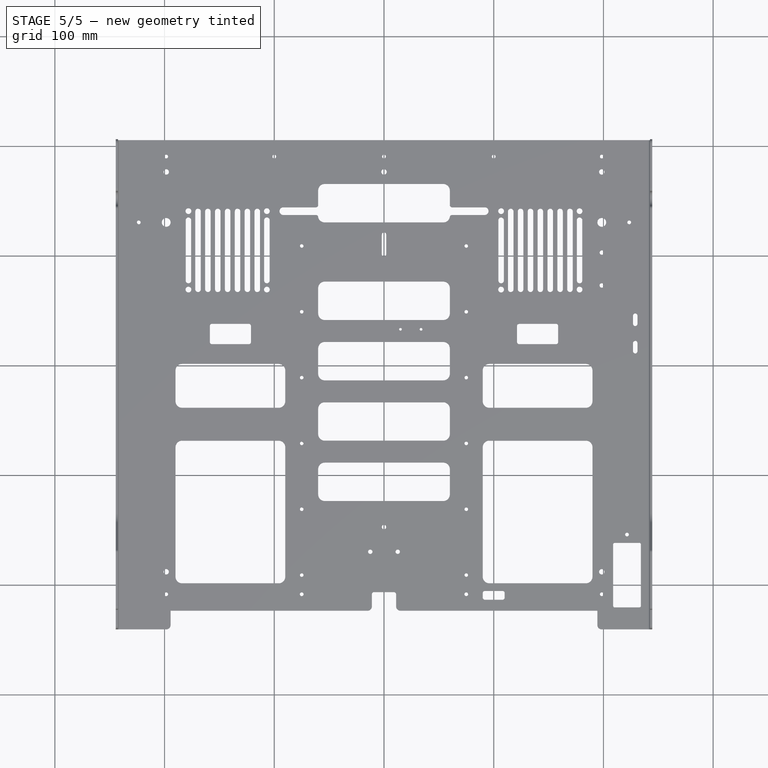
[diagram: stage 5 of 5 — top view after this stage's code; geometry added in this stage tinted green]
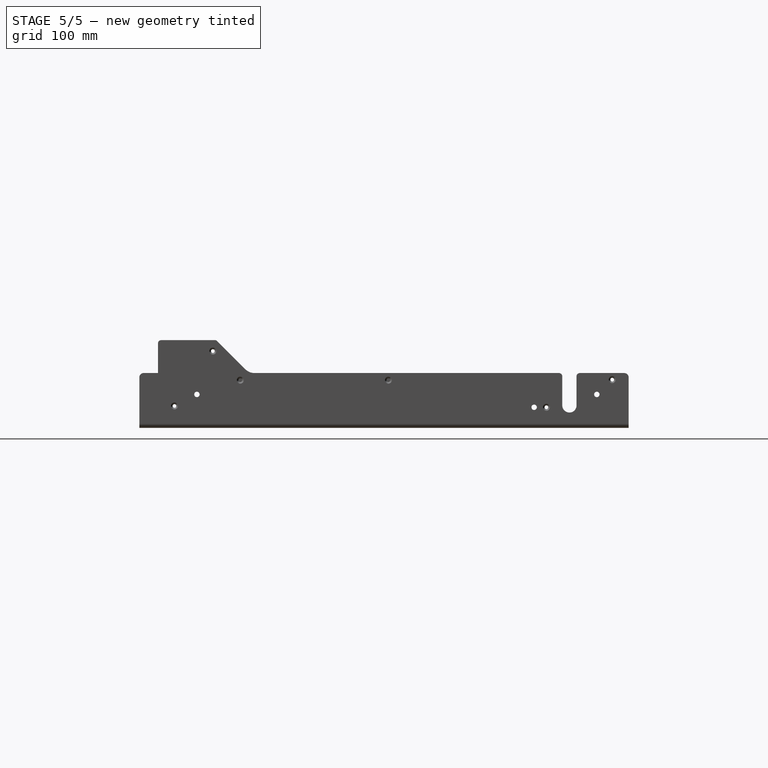
[diagram: stage 5 of 5 — right view after this stage's code; geometry added in this stage tinted green]
FEATURE [PartDesign::Fillet] Fillet015
  Base = -> Fillet014 [Edge235,Edge225,Edge229,Edge240,Edge633,Edge630,Edge632,Edge635,Edge660,Edge663,Edge661,Edge658,Edge651,Edge624,Edge649,Edge625,Edge620,Edge646,Edge622,Edge648]
  Radius = 6
FEATURE [Sketcher::SketchObject] Sketch010
  ExternalGeometry = -> [Fillet015]
  Placement = pos=(0,0,0) rot=(1,0,0;3.14159rad)
  Support = -> Fillet015 [Face1]
  sketch-geometry (23):
    g0: Circle CenterX=198.5 CenterY=-203.068 CenterZ=0 NormalX=0 NormalY=0 NormalZ=1 Radius=2
    g1: Circle CenterX=198.5 CenterY=-173.068 CenterZ=0 NormalX=0 NormalY=0 NormalZ=1 Radius=2
    g2: LineSegment [constr] StartX=227 StartY=-138.068 StartZ=0 EndX=231 EndY=-138.068 EndZ=0
    g3: LineSegment StartX=231 StartY=-138.068 StartZ=0 EndX=231 EndY=-145.568 EndZ=0
    g4: LineSegment [constr] StartX=231 StartY=-145.568 StartZ=0 EndX=227 EndY=-145.568 EndZ=0
    g5: LineSegment StartX=227 StartY=-145.568 StartZ=0 EndX=227 EndY=-138.068 EndZ=0
    g6: LineSegment [constr] StartX=227 StartY=-113.068 StartZ=0 EndX=231 EndY=-113.068 EndZ=0
    g7: LineSegment StartX=231 StartY=-113.068 StartZ=0 EndX=231 EndY=-120.568 EndZ=0
    g8: LineSegment [constr] StartX=231 StartY=-120.568 StartZ=0 EndX=227 EndY=-120.568 EndZ=0
    g9: LineSegment StartX=227 StartY=-120.568 StartZ=0 EndX=227 EndY=-113.068 EndZ=0
    g10: ArcOfCircle CenterX=229 CenterY=-145.568 CenterZ=0 NormalX=0 NormalY=0 NormalZ=1 Radius=2 StartAngle=3.14159 EndAngle=6.28319
    g11: ArcOfCircle CenterX=229 CenterY=-138.068 CenterZ=0 NormalX=0 NormalY=0 NormalZ=1 Radius=2 StartAngle=0 EndAngle=3.14159
    g12: ArcOfCircle CenterX=229 CenterY=-120.568 CenterZ=0 NormalX=0 NormalY=0 NormalZ=1 Radius=2 StartAngle=3.14159 EndAngle=6.28319
    g13: ArcOfCircle CenterX=229 CenterY=-113.068 CenterZ=0 NormalX=0 NormalY=0 NormalZ=1 Radius=2 StartAngle=0 EndAngle=3.14159
    g14: LineSegment StartX=208.85 StartY=120.432 StartZ=0 EndX=234.15 EndY=120.432 EndZ=0
    g15: LineSegment StartX=234.15 StartY=120.432 StartZ=0 EndX=234.15 EndY=61.5322 EndZ=0
    g16: LineSegment StartX=234.15 StartY=61.5322 StartZ=0 EndX=208.85 EndY=61.5322 EndZ=0
    g17: LineSegment StartX=208.85 StartY=61.5322 StartZ=0 EndX=208.85 EndY=120.432 EndZ=0
    g18: Circle CenterX=221.5 CenterY=54.0322 CenterZ=0 NormalX=0 NormalY=0 NormalZ=1 Radius=1.7
    g19: LineSegment StartX=90 StartY=113.432 StartZ=0 EndX=110 EndY=113.432 EndZ=0
    g20: LineSegment StartX=110 StartY=113.432 StartZ=0 EndX=110 EndY=105.432 EndZ=0
    g21: LineSegment StartX=110 StartY=105.432 StartZ=0 EndX=90 EndY=105.432 EndZ=0
    g22: LineSegment StartX=90 StartY=105.432 StartZ=0 EndX=90 EndY=113.432 EndZ=0
  constraints (70):
    c: Equal(g1,g0)
    c: Radius(g1) = 2
    c: Distance(g1,g-4) = 46
    c: Distance(g0,g-4) = 46
    c: Distance(g-3,g0) = 27.5
    c: Distance(g1,g0) = 30
    c: Coincident(g2,g3)
    c: Coincident(g3,g4)
    c: Coincident(g4,g5)
    c: Coincident(g5,g2)
    c: Horizontal(g2)
    c: Horizontal(g4)
    c: Vertical(g3)
    c: Vertical(g5)
    c: Coincident(g6,g7)
    c: Coincident(g7,g8)
    c: Coincident(g8,g9)
    c: Coincident(g9,g6)
    c: Horizontal(g6)
    c: Horizontal(g8)
    c: Vertical(g7)
    c: Vertical(g9)
    c: PointOnObject(g10,g4)
    c: Coincident(g10,g3)
    c: Coincident(g10,g4)
    c: PointOnObject(g11,g2)
    c: Coincident(g11,g2)
    c: Coincident(g11,g2)
    c: PointOnObject(g12,g8)
    c: Coincident(g12,g7)
    c: Coincident(g12,g8)
    c: PointOnObject(g13,g6)
    c: PointOnObject(g13,g6)
    c: Equal(g12,g11)
    c: Equal(g7,g3)
    c: Distance(g10,g-5) = 160
    c: Distance(g3,g-4) = 13.5
    c: DistanceY(g5) = 7.5
    c: Coincident(g13,g6)
    c: Coincident(g13,g6)
    c: Distance(g6,g-4) = 13.5
    c: DistanceX(g8) = -4
    c: Distance(g11,g8) = 17.5
    c: Coincident(g14,g15)
    c: Coincident(g15,g16)
    c: Coincident(g16,g17)
    c: Coincident(g17,g14)
    c: Horizontal(g14)
    c: Horizontal(g16)
    c: Vertical(g15)
    c: Vertical(g17)
    c: Distance(g14,g-4) = 10.35
    c: DistanceX(g14) = 25.3
    c: DistanceY(g15) = -58.9
    c: Distance(g14,g-6) = 20
    c: Distance(g18,g15) = 12.65
    c: Distance(g18,g16) = 7.5
    c: Radius(g18) = 1.7
    c: Coincident(g19,g20)
    c: Coincident(g20,g21)
    c: Coincident(g21,g22)
    c: Coincident(g22,g19)
    c: Horizontal(g19)
    c: Horizontal(g21)
    c: Vertical(g20)
    c: Vertical(g22)
    c: PointOnObject(g21,g-7)
    c: DistanceX(g21) = -20
    c: DistanceY(g22) = 8
    c: Distance(g20,g-8) = 7
FEATURE [PartDesign::Pocket] Pocket007
  Length = 5
  Sketch = -> Sketch010
  Type = 1
FEATURE [PartDesign::Chamfer] Chamfer003
  Base = -> Pocket007 [Edge252]
  Size = 1.45
FEATURE [PartDesign::Fillet] Fillet016
  Base = -> Chamfer003 [Edge759,Edge761,Edge764,Edge762]
  Radius = 2
FEATURE [PartDesign::Fillet] Fillet017
  Base = -> Fillet016 [Edge781,Edge784,Edge782,Edge779]
  Radius = 1.5
FEATURE [Sketcher::SketchObject] Sketch011
  ExternalGeometry = -> [Fillet017]
  Placement = pos=(244.5,0,0) rot=(0.57735,0.57735,0.57735;2.0944rad)
  Support = -> Fillet017 [Face266]
  sketch-geometry (3):
    g0: LineSegment [constr] StartX=-180 StartY=43.5 StartZ=0 EndX=320 EndY=43.5 EndZ=0
    g1: Circle CenterX=-48.4322 CenterY=43.5 CenterZ=0 NormalX=0 NormalY=0 NormalZ=1 Radius=1.7
    g2: Circle CenterX=86.5678 CenterY=43.5 CenterZ=0 NormalX=0 NormalY=0 NormalZ=1 Radius=1.7
  constraints (10):
    c: Horizontal(g0)
    c: Distance(g0,g-3) = 6.5
    c: DistanceX(g0) = 500
    c: DistanceX(g-2,g0) = -180
    c: PointOnObject(g1,g0)
    c: PointOnObject(g2,g0)
    c: Equal(g2,g1)
    c: Radius(g1) = 1.7
    c: Distance(g1,g-4) = 92
    c: Distance(g1,g2) = 135
FEATURE [PartDesign::Pocket] Pocket008
  Length = 5
  Sketch = -> Sketch011
  Type = 0
FEATURE [PartDesign::Chamfer] Chamfer004
  Base = -> Pocket008 [Edge842,Edge841]
  Size = 1.45
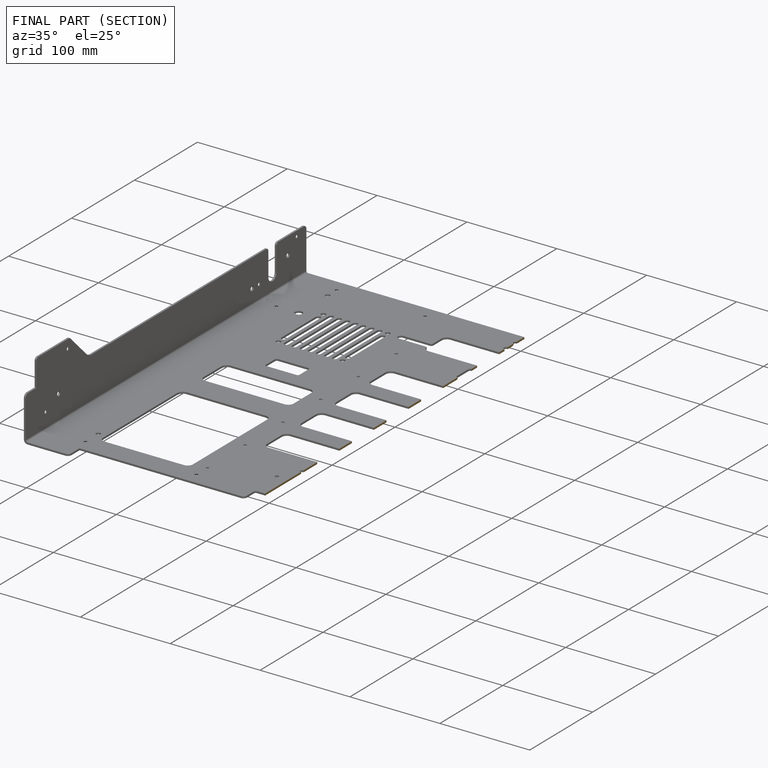
[diagram: finished part — half-section view (interior)]
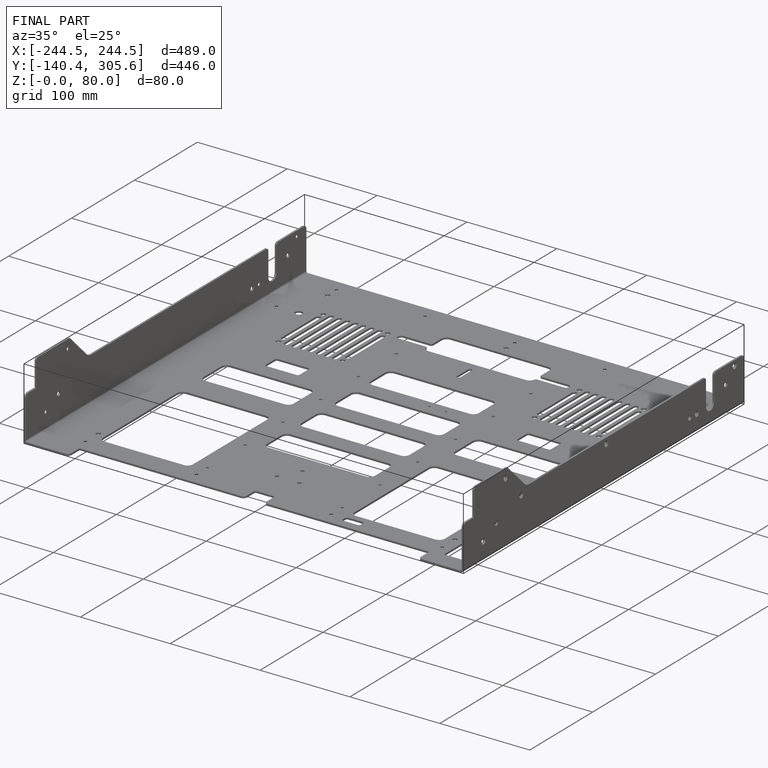
[diagram: finished part — iso view with bounding-box wireframe]
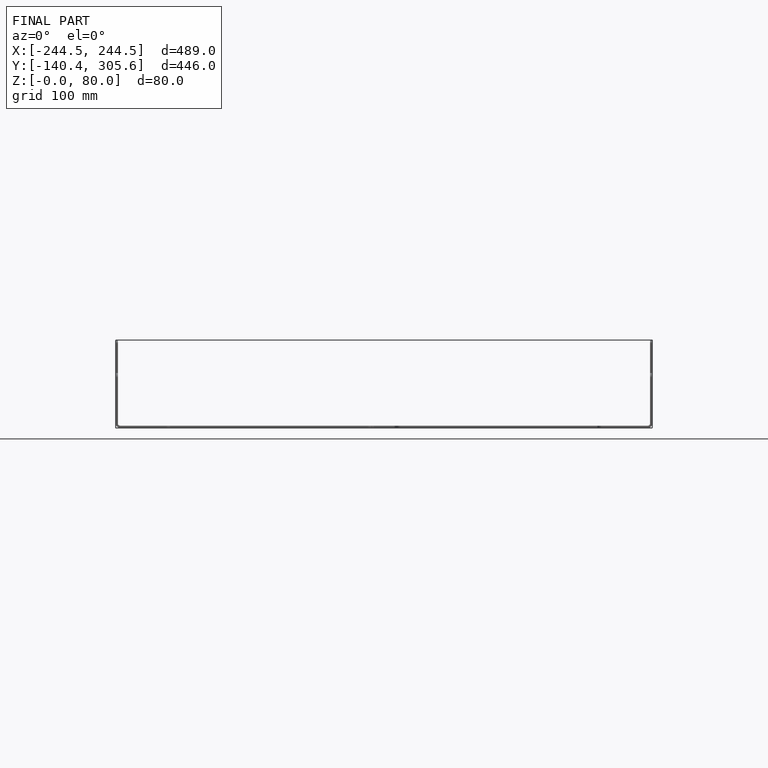
[diagram: finished part — front view with bounding-box wireframe]
